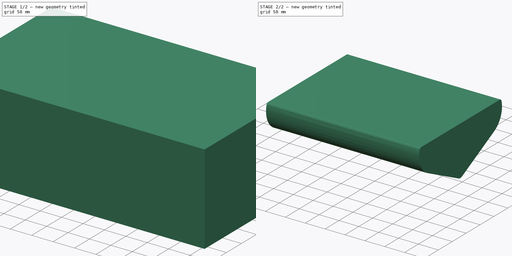
[diagram: build sequence overview — one tinted view per stage of 2, left to right]
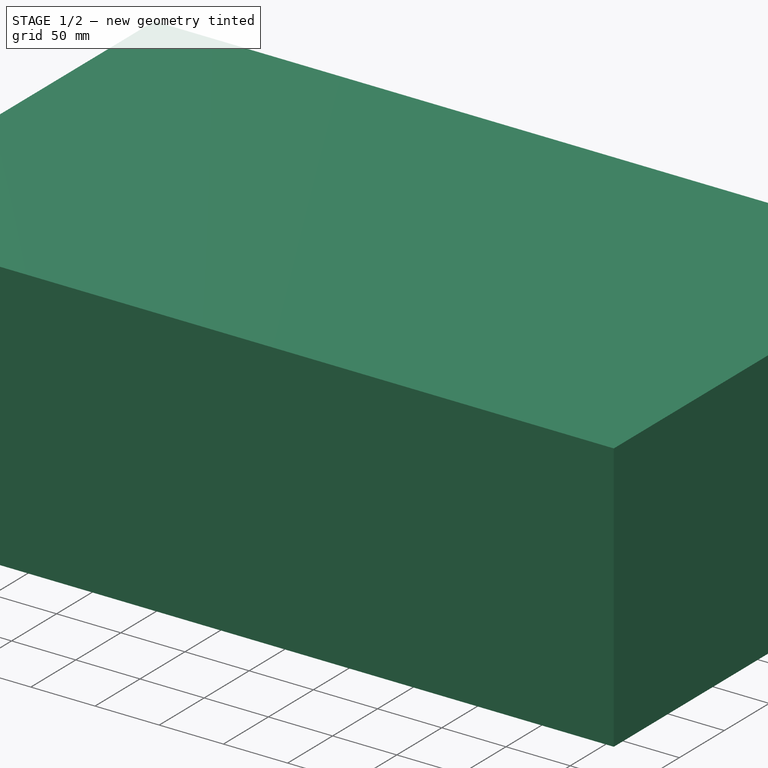
[diagram: stage 1 of 2 — iso view after this stage's code; geometry added in this stage tinted green]
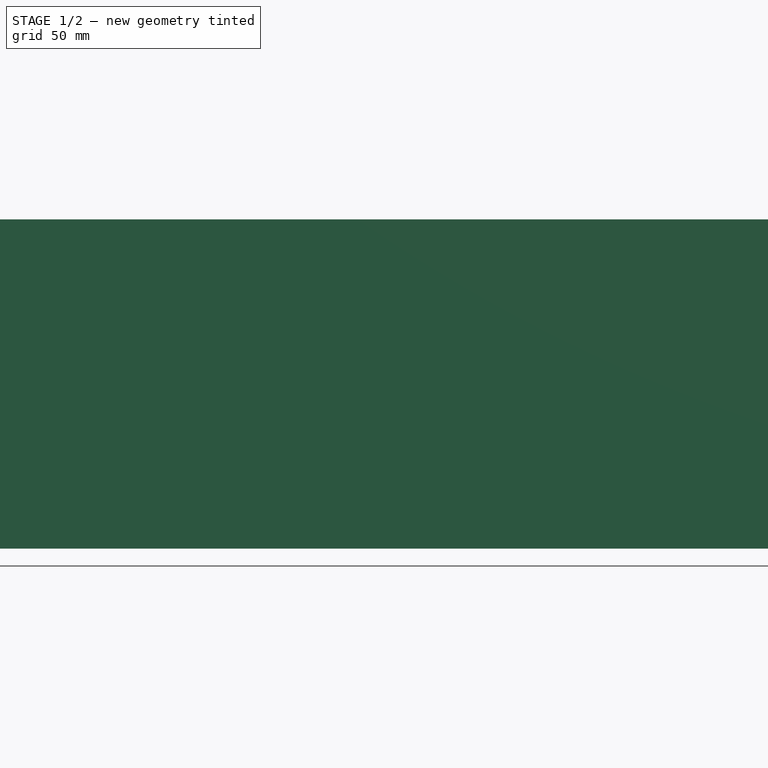
[diagram: stage 1 of 2 — front view after this stage's code; geometry added in this stage tinted green]
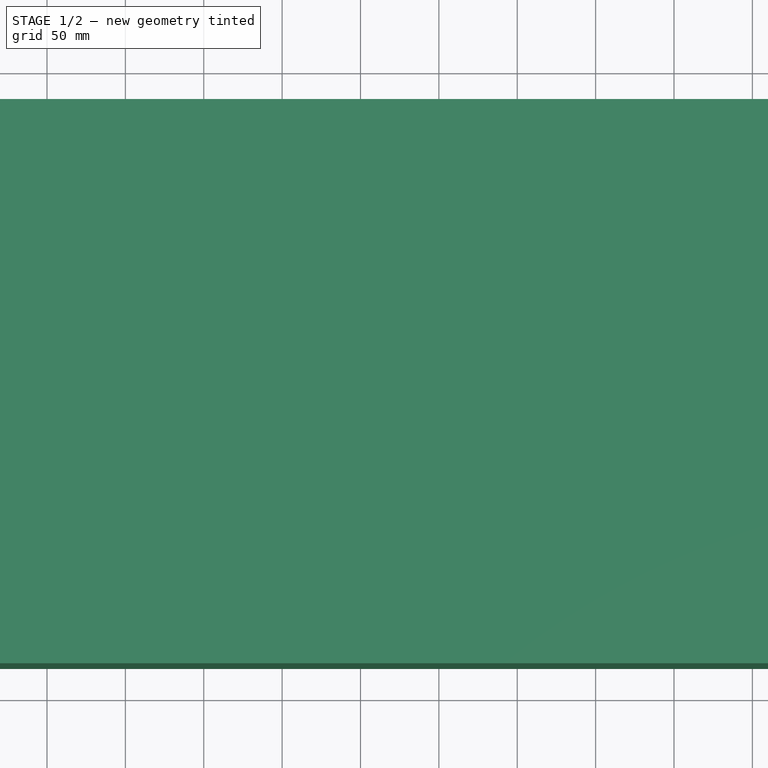
[diagram: stage 1 of 2 — top view after this stage's code; geometry added in this stage tinted green]
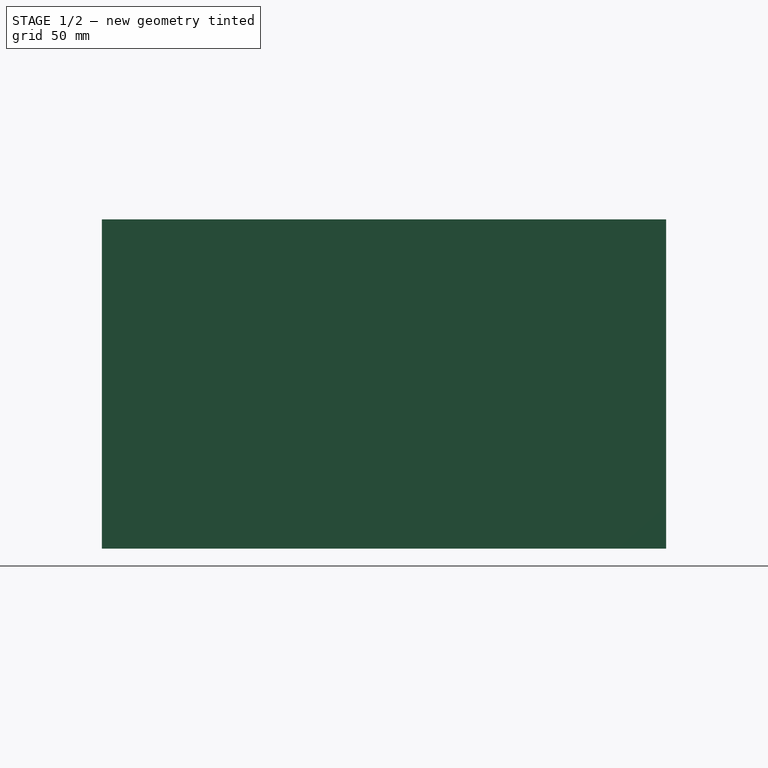
[diagram: stage 1 of 2 — right view after this stage's code; geometry added in this stage tinted green]
FCSTD DOCUMENT  (FreeCAD 0.19R24366 (Git))
Label: hulltest6
License: All rights reserved
LicenseURL: http://en.wikipedia.org/wiki/All_rights_reserved
objects: Sketcher::SketchObject×12, Part::Loft×3, PartDesign::Pad×1, Part::FeaturePython×1, Part::Extrusion×1, App::DocumentObjectGroup×1
note: 19 computed .brp shape members not serialized (recipe doc carries the construction recipe); baked Part::Feature solids carry a one-line shape summary decoded from their .brp

FEATURE [Sketcher::SketchObject] Sketch001  label="HullOutline"
  FullyConstrained = false
  Placement = pos=(0,0,0) rot=(1,0,0;1.59004rad)
  sketch-geometry (9):
    g0: LineSegment StartX=0 StartY=4e-16 StartZ=0 EndX=160 EndY=3 EndZ=0
    g1: LineSegment StartX=0 StartY=4e-16 StartZ=0 EndX=-20 EndY=70 EndZ=0
    g2: LineSegment StartX=-20 StartY=70 StartZ=0 EndX=-170 EndY=70 EndZ=0
    g3: LineSegment StartX=-170 StartY=70 StartZ=0 EndX=-190 EndY=194.294 EndZ=0
    g4: LineSegment StartX=-190 StartY=194.294 StartZ=0 EndX=420 EndY=194.294 EndZ=0
    g5: LineSegment StartX=420 StartY=194.294 StartZ=0 EndX=180 EndY=70 EndZ=0
    g6: LineSegment StartX=180 StartY=70 StartZ=0 EndX=160 EndY=3 EndZ=0
    g7: LineSegment StartX=-20 StartY=70 StartZ=0 EndX=180 EndY=70 EndZ=0
    g8: GeomPoint X=0 Y=194.294 Z=0
  constraints (23):
    c: Coincident(g1,g0)
    c: Horizontal(g2)
    c: Coincident(g3,g2)
    c: Horizontal(g4)
    c: Coincident(g6,g5)
    c: Coincident(g6,g0)
    c: DistanceX(g4,g4) = 610
    c: Coincident(g3,g4)
    c: DistanceX(g3,g2) = 20
    c: DistanceX(g2,g1) = 150
    c: Coincident(g2,g1)
    c: DistanceY(g0,g1) = 70
    c: DistanceX(g0,g0) = 160
    c: DistanceX(g1,g0) = 20
    c: DistanceY(g0,g0) = 3
    c: Horizontal(g1,g5)
    c: DistanceX(g0,g5) = 20
    c: Coincident(g5,g4)
    c: Coincident(g-1,g0)
    c: Coincident(g7,g1)
    c: Coincident(g7,g5)
    c: PointOnObject(g8,g4)
    c: PointOnObject(g8,g-2)
FEATURE [Sketcher::SketchObject] Sketch
  FullyConstrained = true
  MapMode = 5
  Placement = pos=(-190,0,0) rot=(0.57735,0.57735,0.57735;2.0944rad)
  sketch-geometry (4):
    g0: LineSegment StartX=-180 StartY=210 StartZ=0 EndX=180 EndY=210 EndZ=0
    g1: LineSegment StartX=180 StartY=210 StartZ=0 EndX=180 EndY=0 EndZ=0
    g2: LineSegment StartX=180 StartY=0 StartZ=0 EndX=-180 EndY=0 EndZ=0
    g3: LineSegment StartX=-180 StartY=0 StartZ=0 EndX=-180 EndY=210 EndZ=0
  constraints (12):
    c: Coincident(g0,g1)
    c: Coincident(g1,g2)
    c: Coincident(g2,g3)
    c: Coincident(g3,g0)
    c: Horizontal(g0)
    c: Horizontal(g2)
    c: Vertical(g1)
    c: Vertical(g3)
    c: DistanceX(g0,g0) = 360
    c: DistanceY(g3,g3) = 210
    c: Horizontal(g2,g-1)
    c: DistanceX(g2,g-1) = 180
FEATURE [PartDesign::Pad] Pad  label="BoatCoverageExtrude"
  Direction = (1,1,1)
  Length = 610
  Length2 = 100
  Placement = pos=(-190,0,0) rot=(0.57735,0.57735,0.57735;2.0944rad)
  Profile = -> Sketch
  Type = 0
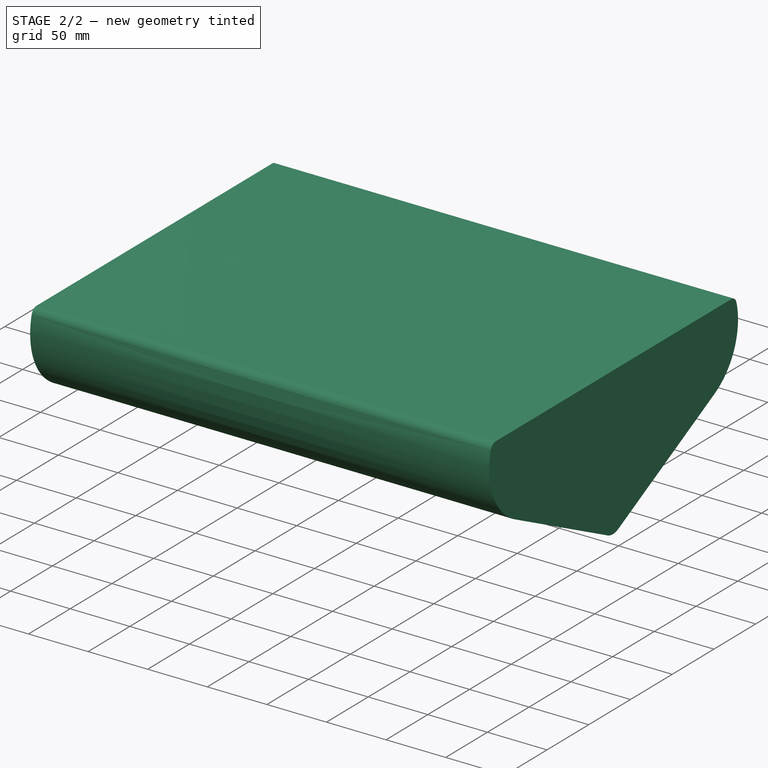
[diagram: stage 2 of 2 — iso view after this stage's code; geometry added in this stage tinted green]
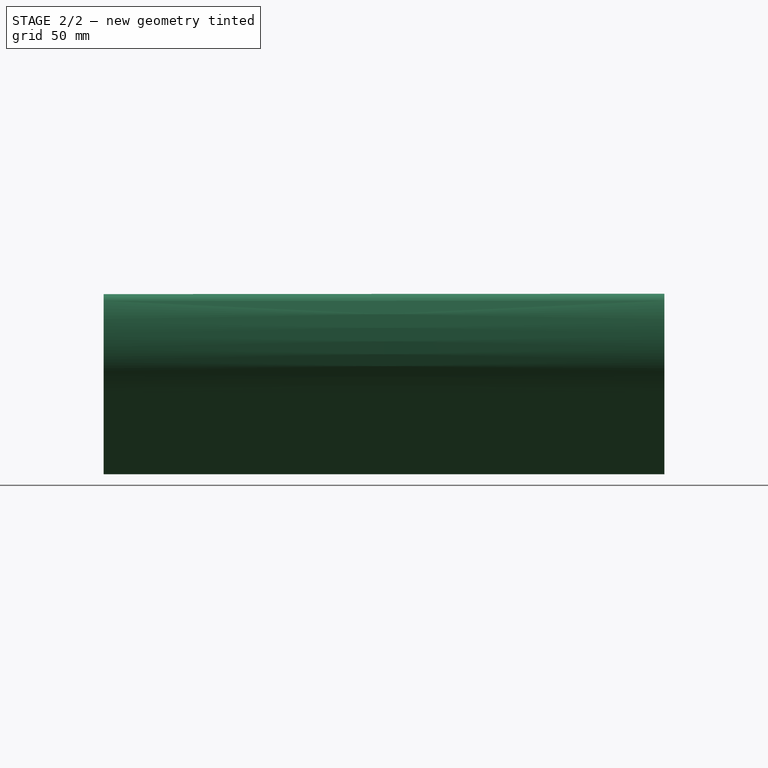
[diagram: stage 2 of 2 — front view after this stage's code; geometry added in this stage tinted green]
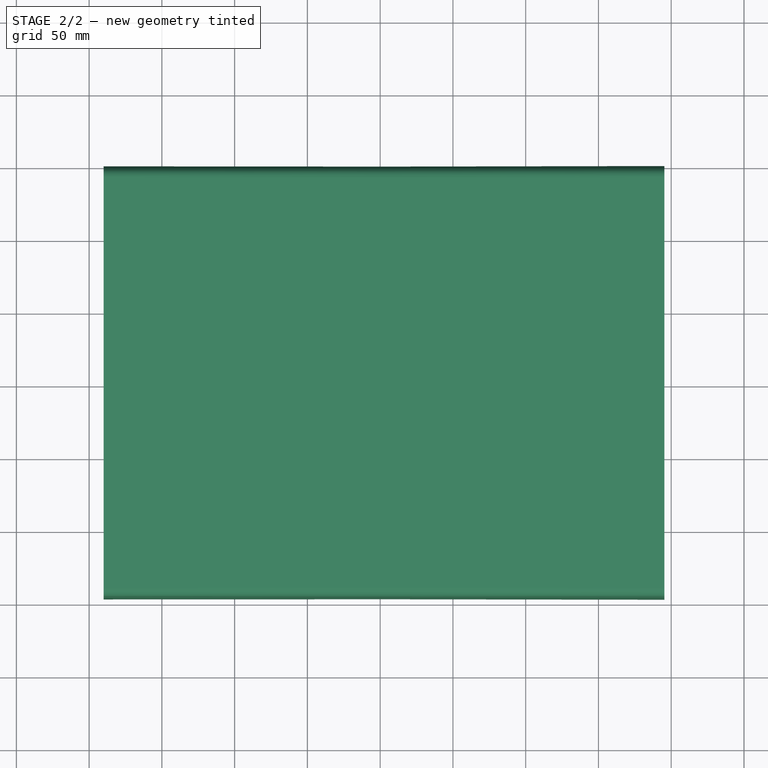
[diagram: stage 2 of 2 — top view after this stage's code; geometry added in this stage tinted green]
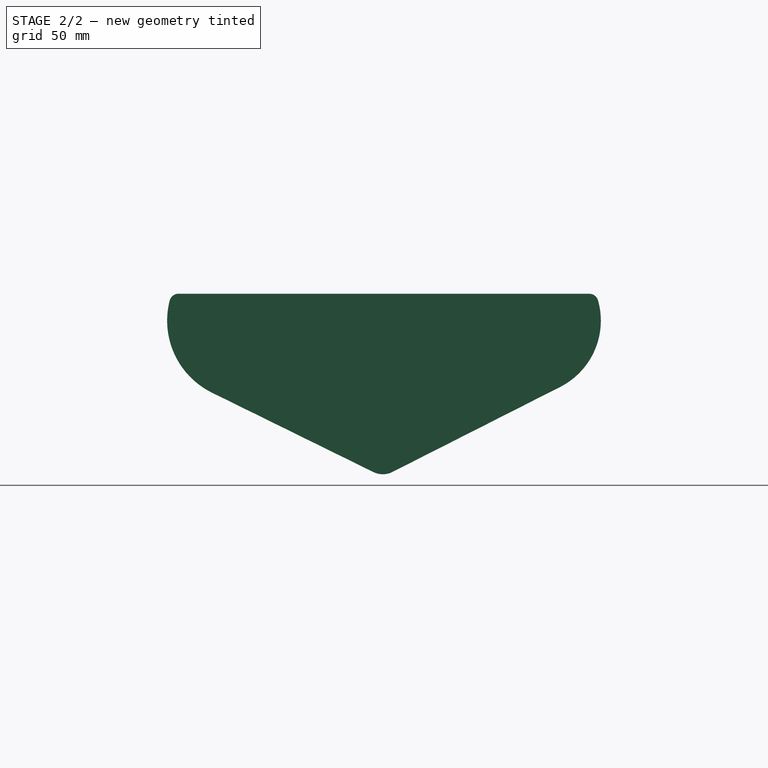
[diagram: stage 2 of 2 — right view after this stage's code; geometry added in this stage tinted green]
FEATURE [Part::FeaturePython] IsoCurve  # WARN: FeaturePython — macro-defined, semantics opaque (R4)
  Face = -> Pad [Face2]
  Mode = 1
  NumberU = 0
  NumberV = 20
  Orientation = 0
  Parameter = 0
  Placement = pos=(-190,0,0) rot=(0.57735,0.57735,0.57735;2.0944rad)
FEATURE [Part::Extrusion] Extrude  label="CuttingExtrude"
  Base = -> IsoCurve
  Dir = (0,-1,0)
  DirMode = 0
  FaceMakerClass = Part::FaceMakerBullseye
  LengthFwd = 360
  LengthRev = 0
  Solid = false
  Symmetric = false
FEATURE [Sketcher::SketchObject] Sketch003  label="2_RearBeforeKeel"
  FullyConstrained = false
  MapMode = 5
  Placement = pos=(-29.4737,0,-3.3e-15) rot=(0.57735,0.57735,0.57735;2.0944rad)
  Support = -> [Extrude]
  sketch-geometry (9):
    g0: LineSegment StartX=-6.4324 StartY=72.4339 StartZ=0 EndX=-117.311 EndY=126.995 EndZ=0
    g1: ArcOfCircle CenterX=-93.0379 CenterY=176.322 CenterZ=0 NormalX=0 NormalY=0 NormalZ=1 AngleXU=0 Radius=54.9753 StartAngle=2.88661 EndAngle=4.25509
    g2: LineSegment StartX=-140.358 StartY=194.73 StartZ=0 EndX=0 EndY=194.73 EndZ=0
    g3: LineSegment StartX=141.816 StartY=194.73 StartZ=0 EndX=0 EndY=194.73 EndZ=0
    g4: ArcOfCircle CenterX=98.6945 CenterY=176.322 CenterZ=0 NormalX=0 NormalY=0 NormalZ=1 AngleXU=0 Radius=50.9247 StartAngle=5.18173 EndAngle=6.56178
    g5: LineSegment StartX=6.58946 StartY=72.5124 StartZ=0 EndX=121.728 EndY=130.904 EndZ=0
    g6: ArcOfCircle CenterX=0 CenterY=85.5056 CenterZ=0 NormalX=0 NormalY=0 NormalZ=1 AngleXU=0 Radius=14.5687 StartAngle=4.25509 EndAngle=5.18173
    g7: ArcOfCircle CenterX=-140.358 CenterY=188.656 CenterZ=0 NormalX=0 NormalY=0 NormalZ=1 AngleXU=0 Radius=6.07409 StartAngle=1.5708 EndAngle=2.88661
    g8: ArcOfCircle CenterX=141.816 CenterY=188.656 CenterZ=0 NormalX=0 NormalY=0 NormalZ=1 AngleXU=0 Radius=6.07409 StartAngle=0.278594 EndAngle=1.5708
  constraints (15):
    c: Tangent(g1,g0) = 1.5708
    c: PointOnObject(g2,g-2)
    c: Horizontal(g2)
    c: Tangent(g4,g5) = -1.5708
    c: Horizontal(g3)
    c: Coincident(g2,g3)
    c: Tangent(g5,g6) = -1.5708
    c: Tangent(g0,g6) = 1.5708
    c: PointOnObject(g6,g-2)
    c: Tangent(g1,g7) = -1.5708
    c: Tangent(g2,g7) = 1.5708
    c: Tangent(g3,g8) = -1.5708
    c: Tangent(g4,g8) = -1.5708
    c: Horizontal(g7,g8)
    c: Horizontal(g1,g4)
FEATURE [Sketcher::SketchObject] Sketch004  label="7_Bow"
  FullyConstrained = false
  MapMode = 5
  Placement = pos=(420,0,4.66e-14) rot=(0.57735,0.57735,0.57735;2.0944rad)
  Support = -> [Extrude]
  sketch-geometry (9):
    g0: LineSegment StartX=-7.25781 StartY=187.981 StartZ=0 EndX=-9.1398 EndY=191.681 EndZ=0
    g1: ArcOfCircle CenterX=-7.2038 CenterY=192.666 CenterZ=0 NormalX=0 NormalY=0 NormalZ=1 AngleXU=0 Radius=2.17202 StartAngle=1.66936 EndAngle=3.61211
    g2: LineSegment StartX=-3.91281 StartY=195 StartZ=0 EndX=0 EndY=195 EndZ=0
    g3: LineSegment StartX=3.91281 StartY=195 StartZ=0 EndX=0 EndY=195 EndZ=0
    g4: ArcOfCircle CenterX=7.2038 CenterY=192.666 CenterZ=0 NormalX=0 NormalY=0 NormalZ=1 AngleXU=0 Radius=2.17202 StartAngle=5.81267 EndAngle=7.75542
    g5: LineSegment StartX=7.25781 StartY=187.981 StartZ=0 EndX=9.1398 EndY=191.681 EndZ=0
    g6: ArcOfCircle CenterX=0 CenterY=191.672 CenterZ=0 NormalX=0 NormalY=0 NormalZ=1 AngleXU=0 Radius=8.14263 StartAngle=3.61211 EndAngle=5.81267
    g7: ArcOfCircle CenterX=-3.91281 CenterY=159.384 CenterZ=0 NormalX=0 NormalY=0 NormalZ=1 AngleXU=0 Radius=35.6161 StartAngle=1.5708 EndAngle=1.66936
    g8: ArcOfCircle CenterX=3.91281 CenterY=159.384 CenterZ=0 NormalX=0 NormalY=0 NormalZ=1 AngleXU=0 Radius=35.6161 StartAngle=1.47223 EndAngle=1.5708
  constraints (18):
    c: Tangent(g1,g0) = 1.5708
    c: PointOnObject(g2,g-2)
    c: Horizontal(g2)
    c: Tangent(g4,g5) = -1.5708
    c: Horizontal(g3)
    c: Coincident(g2,g3)
    c: Tangent(g5,g6) = -1.5708
    c: Tangent(g0,g6) = 1.5708
    c: PointOnObject(g6,g-2)
    c: Tangent(g1,g7) = -1.5708
    c: Tangent(g2,g7) = 1.5708
    c: Tangent(g3,g8) = -1.5708
    c: Tangent(g4,g8) = -1.5708
    c: Horizontal(g7,g8)
    c: Horizontal(g1,g4)
    c: Equal(g0,g5)
    c: Equal(g2,g3)
    c: DistanceY(g-1,g2) = 195
FEATURE [Sketcher::SketchObject] Sketch005  label="5_AfterKeel"
  FullyConstrained = false
  MapMode = 5
  Placement = pos=(195.263,0,2.17e-14) rot=(0.57735,0.57735,0.57735;2.0944rad)
  Support = -> [Extrude]
  sketch-geometry (9):
    g0: LineSegment StartX=-6.42769 StartY=72.434 StartZ=0 EndX=-117.386 EndY=126.995 EndZ=0
    g1: ArcOfCircle CenterX=-93.0379 CenterY=176.511 CenterZ=0 NormalX=0 NormalY=0 NormalZ=1 AngleXU=0 Radius=55.1783 StartAngle=2.88995 EndAngle=4.25538
    g2: LineSegment StartX=-140.353 StartY=195 StartZ=0 EndX=0 EndY=195 EndZ=0
    g3: LineSegment StartX=141.816 StartY=195 StartZ=0 EndX=0 EndY=195 EndZ=0
    g4: ArcOfCircle CenterX=98.6945 CenterY=176.511 CenterZ=0 NormalX=0 NormalY=0 NormalZ=1 AngleXU=0 Radius=51.1291 StartAngle=5.18144 EndAngle=6.55813
    g5: LineSegment StartX=6.58466 StartY=72.5124 StartZ=0 EndX=121.807 EndY=130.904 EndZ=0
    g6: ArcOfCircle CenterX=0 CenterY=85.5056 CenterZ=0 NormalX=0 NormalY=0 NormalZ=1 AngleXU=0 Radius=14.5665 StartAngle=4.25538 EndAngle=5.18144
    g7: ArcOfCircle CenterX=-140.353 CenterY=188.675 CenterZ=0 NormalX=0 NormalY=0 NormalZ=1 AngleXU=0 Radius=6.32493 StartAngle=1.5708 EndAngle=2.88995
    g8: ArcOfCircle CenterX=141.816 CenterY=188.675 CenterZ=0 NormalX=0 NormalY=0 NormalZ=1 AngleXU=0 Radius=6.32493 StartAngle=0.274945 EndAngle=1.5708
  constraints (16):
    c: Tangent(g1,g0) = 1.5708
    c: PointOnObject(g2,g-2)
    c: Horizontal(g2)
    c: Tangent(g4,g5) = -1.5708
    c: Horizontal(g3)
    c: Coincident(g2,g3)
    c: Tangent(g5,g6) = -1.5708
    c: Tangent(g0,g6) = 1.5708
    c: PointOnObject(g6,g-2)
    c: Tangent(g1,g7) = -1.5708
    c: Tangent(g2,g7) = 1.5708
    c: Tangent(g3,g8) = -1.5708
    c: Tangent(g4,g8) = -1.5708
    c: Horizontal(g7,g8)
    c: Horizontal(g1,g4)
    c: DistanceY(g-1,g2) = 195
FEATURE [Sketcher::SketchObject] Sketch006  label="6_BeforeBowRise"
  FullyConstrained = false
  MapMode = 5
  Placement = pos=(323.684,0,3.59e-14) rot=(0.57735,0.57735,0.57735;2.0944rad)
  Support = -> [Extrude]
  sketch-geometry (9):
    g0: LineSegment StartX=-18.7597 StartY=137.878 StartZ=0 EndX=-60.8098 EndY=165.969 EndZ=0
    g1: ArcOfCircle CenterX=-52.4822 CenterY=178.435 CenterZ=0 NormalX=0 NormalY=0 NormalZ=1 AngleXU=0 Radius=14.9918 StartAngle=1.96634 EndAngle=4.12345
    g2: LineSegment StartX=-44.632 StartY=195 StartZ=0 EndX=0 EndY=195 EndZ=0
    g3: LineSegment StartX=44.632 StartY=195 StartZ=0 EndX=0 EndY=195 EndZ=0
    g4: ArcOfCircle CenterX=52.3463 CenterY=178.435 CenterZ=0 NormalX=0 NormalY=0 NormalZ=1 AngleXU=0 Radius=15.0437 StartAngle=5.3018 EndAngle=7.46461
    g5: LineSegment StartX=18.7727 StartY=137.887 StartZ=0 EndX=60.7087 EndY=165.93 EndZ=0
    g6: ArcOfCircle CenterX=0 CenterY=165.961 CenterZ=0 NormalX=0 NormalY=0 NormalZ=1 AngleXU=0 Radius=33.7719 StartAngle=4.12345 EndAngle=5.3018
    g7: ArcOfCircle CenterX=-44.632 CenterY=159.634 CenterZ=0 NormalX=0 NormalY=0 NormalZ=1 AngleXU=0 Radius=35.3656 StartAngle=1.5708 EndAngle=1.96634
    g8: ArcOfCircle CenterX=44.632 CenterY=159.634 CenterZ=0 NormalX=0 NormalY=0 NormalZ=1 AngleXU=0 Radius=35.3656 StartAngle=1.18142 EndAngle=1.5708
  constraints (17):
    c: Tangent(g1,g0) = 1.5708
    c: PointOnObject(g2,g-2)
    c: Horizontal(g2)
    c: Tangent(g4,g5) = -1.5708
    c: Horizontal(g3)
    c: Coincident(g2,g3)
    c: Tangent(g5,g6) = -1.5708
    c: Tangent(g0,g6) = 1.5708
    c: PointOnObject(g6,g-2)
    c: Tangent(g1,g7) = -1.5708
    c: Tangent(g2,g7) = 1.5708
    c: Tangent(g3,g8) = -1.5708
    c: Tangent(g4,g8) = -1.5708
    c: Horizontal(g7,g8)
    c: Horizontal(g1,g4)
    c: DistanceY(g-1,g2) = 195
    c: Equal(g2,g3)
FEATURE [Sketcher::SketchObject] Sketch007  label="1_Stern"
  FullyConstrained = false
  MapMode = 5
  Placement = pos=(-190,0,-2.11e-14) rot=(0.57735,0.57735,0.57735;2.0944rad)
  Support = -> [Extrude]
  sketch-geometry (9):
    g0: LineSegment StartX=-6.4324 StartY=72.4339 StartZ=0 EndX=-117.311 EndY=126.995 EndZ=0
    g1: ArcOfCircle CenterX=-93.0379 CenterY=176.322 CenterZ=0 NormalX=0 NormalY=0 NormalZ=1 AngleXU=0 Radius=54.9753 StartAngle=2.88661 EndAngle=4.25509
    g2: LineSegment StartX=-140.358 StartY=194.73 StartZ=0 EndX=0 EndY=194.73 EndZ=0
    g3: LineSegment StartX=141.816 StartY=194.73 StartZ=0 EndX=0 EndY=194.73 EndZ=0
    g4: ArcOfCircle CenterX=98.6945 CenterY=176.322 CenterZ=0 NormalX=0 NormalY=0 NormalZ=1 AngleXU=0 Radius=50.9247 StartAngle=5.18173 EndAngle=6.56178
    g5: LineSegment StartX=6.58946 StartY=72.5124 StartZ=0 EndX=121.728 EndY=130.904 EndZ=0
    g6: ArcOfCircle CenterX=0 CenterY=85.5056 CenterZ=0 NormalX=0 NormalY=0 NormalZ=1 AngleXU=0 Radius=14.5687 StartAngle=4.25509 EndAngle=5.18173
    g7: ArcOfCircle CenterX=-140.358 CenterY=188.656 CenterZ=0 NormalX=0 NormalY=0 NormalZ=1 AngleXU=0 Radius=6.07409 StartAngle=1.5708 EndAngle=2.88661
    g8: ArcOfCircle CenterX=141.816 CenterY=188.656 CenterZ=0 NormalX=0 NormalY=0 NormalZ=1 AngleXU=0 Radius=6.07409 StartAngle=0.278594 EndAngle=1.5708
  constraints (15):
    c: Tangent(g1,g0) = 1.5708
    c: PointOnObject(g2,g-2)
    c: Horizontal(g2)
    c: Tangent(g4,g5) = -1.5708
    c: Horizontal(g3)
    c: Coincident(g2,g3)
    c: Tangent(g5,g6) = -1.5708
    c: Tangent(g0,g6) = 1.5708
    c: PointOnObject(g6,g-2)
    c: Tangent(g1,g7) = -1.5708
    c: Tangent(g2,g7) = 1.5708
    c: Tangent(g3,g8) = -1.5708
    c: Tangent(g4,g8) = -1.5708
    c: Horizontal(g7,g8)
    c: Horizontal(g1,g4)
FEATURE [Part::Loft] Loft
  Closed = false
  MaxDegree = 5
  Ruled = false
  Sections = -> [Sketch007,Sketch003,Sketch005]
  Solid = true
FEATURE [Part::Loft] Loft001
  Closed = false
  MaxDegree = 5
  Ruled = false
  Sections = -> [Sketch005,Sketch006,Sketch004]
  Solid = false
FEATURE [Sketcher::SketchObject] Sketch009  label="K1_BeforeKeelStart"
  ExternalGeometry = -> [Sketch003]
  FullyConstrained = false
  MapMode = 5
  Placement = pos=(-29.4737,0,-3.3e-15) rot=(0.57735,0.57735,0.57735;2.0944rad)
  Support = -> [Extrude]
  sketch-geometry (4):
    g0: LineSegment StartX=-6.4324 StartY=72.4339 StartZ=0 EndX=0 EndY=70.8602 EndZ=0
    g1: LineSegment StartX=0 StartY=70.8602 StartZ=0 EndX=6.58946 EndY=72.5124 EndZ=0
    g2: LineSegment StartX=-21.9784 StartY=80.0838 StartZ=0 EndX=-6.4324 EndY=72.4339 EndZ=0
    g3: LineSegment StartX=6.58946 StartY=72.5124 StartZ=0 EndX=21.5191 EndY=80.0838 EndZ=0
  constraints (9):
    c: Horizontal(g2,g3)
    c: PointOnObject(g2,g-3)
    c: PointOnObject(g3,g-4)
    c: Coincident(g0,g-3)
    c: PointOnObject(g0,g-2)
    c: Coincident(g1,g-4)
    c: Coincident(g0,g1)
    c: Coincident(g2,g0)
    c: Coincident(g3,g1)
FEATURE [Sketcher::SketchObject] Sketch010  label="K3_FrontKeel"
  ExternalGeometry = -> [Sketch003]
  FullyConstrained = false
  MapMode = 5
  Placement = pos=(163.158,0,1.81e-14) rot=(0.57735,0.57735,0.57735;2.0944rad)
  Support = -> [Extrude]
  sketch-geometry (7):
    g0: LineSegment StartX=0 StartY=0 StartZ=0 EndX=-17.5 EndY=3.35061 EndZ=0
    g1: LineSegment StartX=0 StartY=0 StartZ=0 EndX=17.5 EndY=3.35061 EndZ=0
    g2: LineSegment StartX=18.7949 StartY=4.76115 StartZ=0 EndX=26.9228 EndY=82.8243 EndZ=0
    g3: LineSegment StartX=-18.7935 StartY=4.74852 StartZ=0 EndX=-27.5475 EndY=82.8243 EndZ=0
    g4: ArcOfCircle CenterX=-17.1981 CenterY=4.92741 CenterZ=0 NormalX=0 NormalY=0 NormalZ=1 AngleXU=0 Radius=1.60544 StartAngle=3.25325 EndAngle=4.52322
    g5: ArcOfCircle CenterX=17.1981 CenterY=4.92741 CenterZ=0 NormalX=0 NormalY=0 NormalZ=1 AngleXU=0 Radius=1.60544 StartAngle=4.90156 EndAngle=6.17944
    g6: LineSegment StartX=-6.4324 StartY=72.4339 StartZ=0 EndX=6.58946 EndY=72.5124 EndZ=0
  constraints (16):
    c: PointOnObject(g0,g-2)
    c: Coincident(g1,g0)
    c: Equal(g1,g0)
    c: Tangent(g3,g4) = 1.5708
    c: Tangent(g0,g4) = 1.5708
    c: Tangent(g1,g5) = -1.5708
    c: Tangent(g2,g5) = -1.5708
    c: DistanceX(g0,g1) = 35
    c: Horizontal(g0,g-1)
    c: Horizontal(g4,g5)
    c: Horizontal(g3,g2)
    c: PointOnObject(g3,g-3)
    c: PointOnObject(g2,g-4)
    c: Horizontal(g1,g0)
    c: Coincident(g6,g-3)
    c: Coincident(g6,g-4)
FEATURE [Sketcher::SketchObject] Sketch011  label="3_RearKeel"
  FullyConstrained = false
  MapMode = 5
  Placement = pos=(2.63158,0,3e-16) rot=(0.57735,0.57735,0.57735;2.0944rad)
  Support = -> [Extrude]
  sketch-geometry (9):
    g0: LineSegment StartX=-6.4324 StartY=72.4339 StartZ=0 EndX=-117.311 EndY=126.995 EndZ=0
    g1: ArcOfCircle CenterX=-93.0379 CenterY=176.322 CenterZ=0 NormalX=0 NormalY=0 NormalZ=1 AngleXU=0 Radius=54.9753 StartAngle=2.88661 EndAngle=4.25509
    g2: LineSegment StartX=-140.358 StartY=194.73 StartZ=0 EndX=0 EndY=194.73 EndZ=0
    g3: LineSegment StartX=141.816 StartY=194.73 StartZ=0 EndX=0 EndY=194.73 EndZ=0
    g4: ArcOfCircle CenterX=98.6945 CenterY=176.322 CenterZ=0 NormalX=0 NormalY=0 NormalZ=1 AngleXU=0 Radius=50.9247 StartAngle=5.18173 EndAngle=6.56178
    g5: LineSegment StartX=6.58946 StartY=72.5124 StartZ=0 EndX=121.728 EndY=130.904 EndZ=0
    g6: ArcOfCircle CenterX=0 CenterY=85.5056 CenterZ=0 NormalX=0 NormalY=0 NormalZ=1 AngleXU=0 Radius=14.5687 StartAngle=4.25509 EndAngle=5.18173
    g7: ArcOfCircle CenterX=-140.358 CenterY=188.656 CenterZ=0 NormalX=0 NormalY=0 NormalZ=1 AngleXU=0 Radius=6.07409 StartAngle=1.5708 EndAngle=2.88661
    g8: ArcOfCircle CenterX=141.816 CenterY=188.656 CenterZ=0 NormalX=0 NormalY=0 NormalZ=1 AngleXU=0 Radius=6.07409 StartAngle=0.278594 EndAngle=1.5708
  constraints (15):
    c: Tangent(g1,g0) = 1.5708
    c: PointOnObject(g2,g-2)
    c: Horizontal(g2)
    c: Tangent(g4,g5) = -1.5708
    c: Horizontal(g3)
    c: Coincident(g2,g3)
    c: Tangent(g5,g6) = -1.5708
    c: Tangent(g0,g6) = 1.5708
    c: PointOnObject(g6,g-2)
    c: Tangent(g1,g7) = -1.5708
    c: Tangent(g2,g7) = 1.5708
    c: Tangent(g3,g8) = -1.5708
    c: Tangent(g4,g8) = -1.5708
    c: Horizontal(g7,g8)
    c: Horizontal(g1,g4)
FEATURE [Sketcher::SketchObject] Sketch008  label="K2_RearKeel"
  ExternalGeometry = -> [Sketch011]
  FullyConstrained = false
  MapMode = 5
  Placement = pos=(2.63158,0,3e-16) rot=(0.57735,0.57735,0.57735;2.0944rad)
  Support = -> [Extrude]
  sketch-geometry (6):
    g0: LineSegment StartX=0 StartY=0 StartZ=0 EndX=-17.5 EndY=3.37637 EndZ=0
    g1: LineSegment StartX=0 StartY=0 StartZ=0 EndX=17.5 EndY=3.37637 EndZ=0
    g2: LineSegment StartX=18.8536 StartY=4.92106 StartZ=0 EndX=23.3398 EndY=81.0072 EndZ=0
    g3: LineSegment StartX=-18.8529 StartY=4.9098 StartZ=0 EndX=-23.8548 EndY=81.0072 EndZ=0
    g4: ArcOfCircle CenterX=-17.183 CenterY=5.01956 CenterZ=0 NormalX=0 NormalY=0 NormalZ=1 AngleXU=0 Radius=1.67349 StartAngle=3.20723 EndAngle=4.5218
    g5: ArcOfCircle CenterX=17.183 CenterY=5.01956 CenterZ=0 NormalX=0 NormalY=0 NormalZ=1 AngleXU=0 Radius=1.67349 StartAngle=4.90298 EndAngle=6.22429
  constraints (14):
    c: PointOnObject(g0,g-2)
    c: Coincident(g1,g0)
    c: Equal(g1,g0)
    c: Tangent(g3,g4) = 1.5708
    c: Tangent(g0,g4) = 1.5708
    c: Tangent(g1,g5) = -1.5708
    c: Tangent(g2,g5) = -1.5708
    c: DistanceX(g0,g1) = 35
    c: Horizontal(g0,g-1)
    c: Horizontal(g4,g5)
    c: Horizontal(g3,g2)
    c: Horizontal(g1,g0)
    c: PointOnObject(g3,g-3)
    c: PointOnObject(g2,g-4)
FEATURE [App::DocumentObjectGroup] Group  label="Keel"
  Group = -> [Sketch008,Sketch009,Sketch010]
FEATURE [Part::Loft] Loft002
  Closed = false
  MaxDegree = 5
  Ruled = false
  Sections = -> [Sketch009,Sketch008]
  Solid = false
FEATURE [Sketcher::SketchObject] Sketch012  label="4_FrontKeel"
  FullyConstrained = false
  MapMode = 5
  Placement = pos=(163.158,0,1.81e-14) rot=(0.57735,0.57735,0.57735;2.0944rad)
  Support = -> [Extrude]
  sketch-geometry (9):
    g0: LineSegment StartX=-6.42769 StartY=72.434 StartZ=0 EndX=-117.386 EndY=126.995 EndZ=0
    g1: ArcOfCircle CenterX=-93.0379 CenterY=176.511 CenterZ=0 NormalX=0 NormalY=0 NormalZ=1 AngleXU=0 Radius=55.1783 StartAngle=2.88995 EndAngle=4.25538
    g2: LineSegment StartX=-140.353 StartY=195 StartZ=0 EndX=0 EndY=195 EndZ=0
    g3: LineSegment StartX=141.816 StartY=195 StartZ=0 EndX=0 EndY=195 EndZ=0
    g4: ArcOfCircle CenterX=98.6945 CenterY=176.511 CenterZ=0 NormalX=0 NormalY=0 NormalZ=1 AngleXU=0 Radius=51.1291 StartAngle=5.18144 EndAngle=6.55813
    g5: LineSegment StartX=6.58466 StartY=72.5124 StartZ=0 EndX=121.807 EndY=130.904 EndZ=0
    g6: ArcOfCircle CenterX=0 CenterY=85.5056 CenterZ=0 NormalX=0 NormalY=0 NormalZ=1 AngleXU=0 Radius=14.5665 StartAngle=4.25538 EndAngle=5.18144
    g7: ArcOfCircle CenterX=-140.353 CenterY=188.675 CenterZ=0 NormalX=0 NormalY=0 NormalZ=1 AngleXU=0 Radius=6.32493 StartAngle=1.5708 EndAngle=2.88995
    g8: ArcOfCircle CenterX=141.816 CenterY=188.675 CenterZ=0 NormalX=0 NormalY=0 NormalZ=1 AngleXU=0 Radius=6.32493 StartAngle=0.274945 EndAngle=1.5708
  constraints (16):
    c: Tangent(g1,g0) = 1.5708
    c: PointOnObject(g2,g-2)
    c: Horizontal(g2)
    c: Tangent(g4,g5) = -1.5708
    c: Horizontal(g3)
    c: Coincident(g2,g3)
    c: Tangent(g5,g6) = -1.5708
    c: Tangent(g0,g6) = 1.5708
    c: PointOnObject(g6,g-2)
    c: Tangent(g1,g7) = -1.5708
    c: Tangent(g2,g7) = 1.5708
    c: Tangent(g3,g8) = -1.5708
    c: Tangent(g4,g8) = -1.5708
    c: Horizontal(g7,g8)
    c: Horizontal(g1,g4)
    c: DistanceY(g-1,g2) = 195
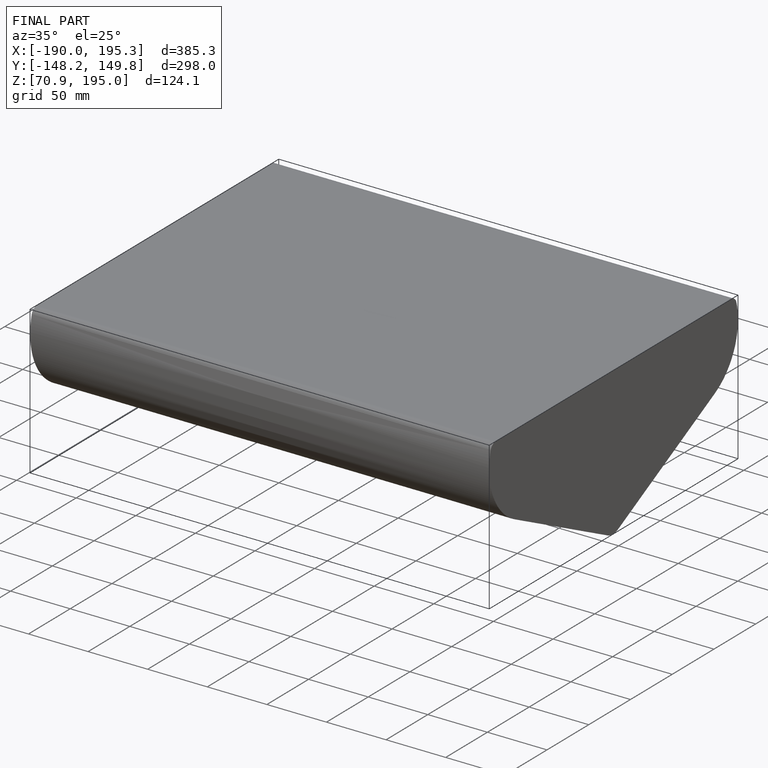
[diagram: finished part — iso view with bounding-box wireframe]
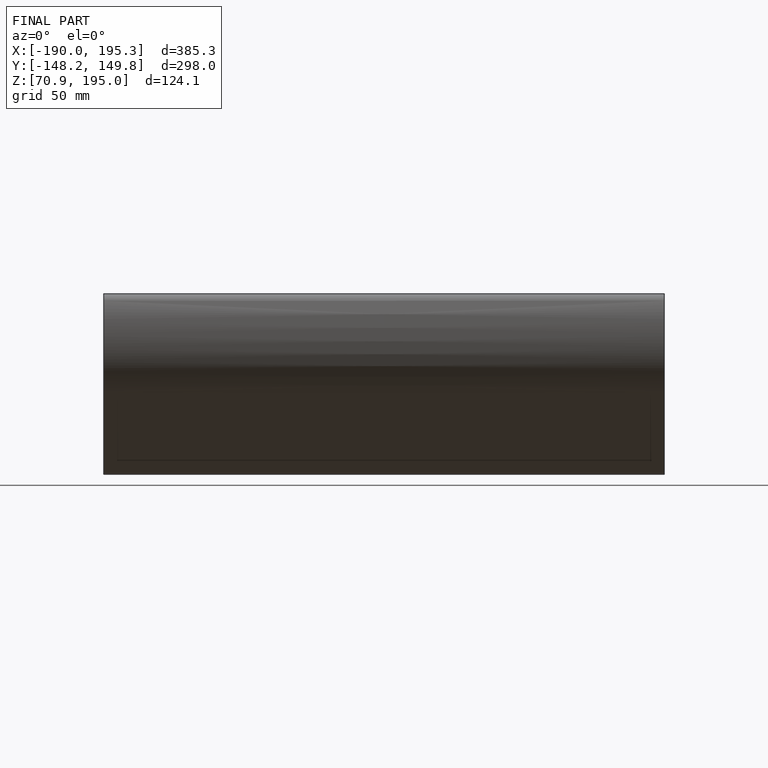
[diagram: finished part — front view with bounding-box wireframe]
